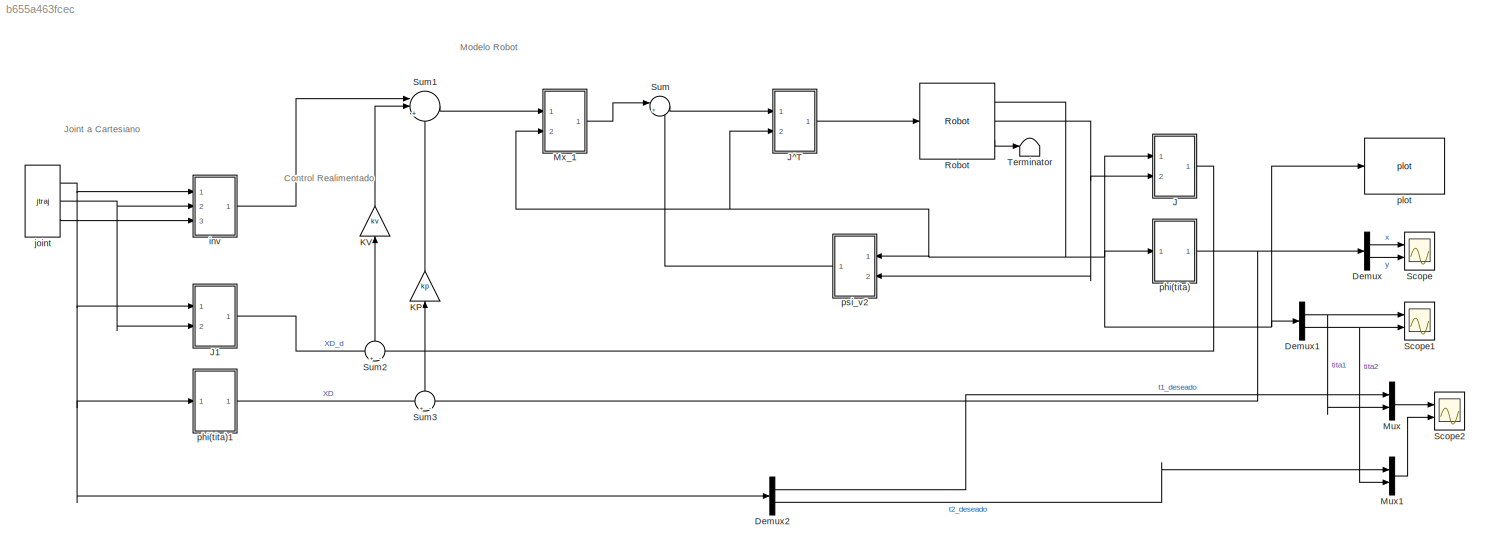
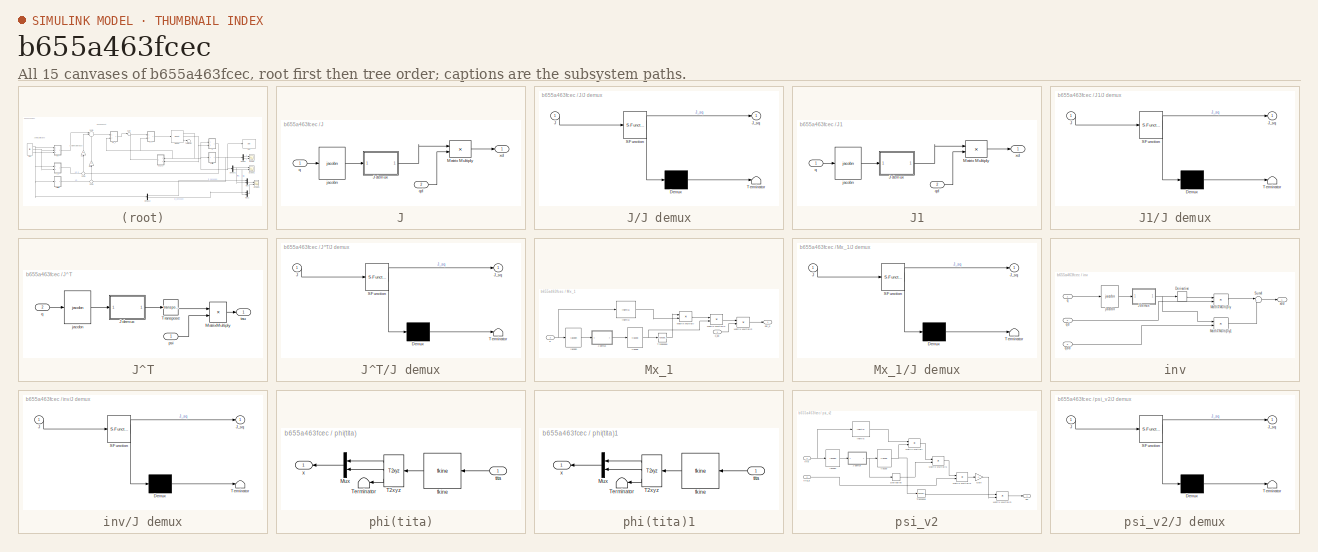
[diagram: thumbnail index - all 15 canvases of the model, root first then tree order]
MODEL slx_b655a463fcec
KIND model
CONFIG AbsTol = auto
CONFIG EnableMultiTasking = off
CONFIG FixedStep = 0.005
CONFIG MaxStep = auto
CONFIG MinStep = auto
CONFIG RelTol = 1e-3
CONFIG SampleTimeConstraint = Unconstrained
CONFIG Solver = VariableStepAuto
CONFIG SolverName = VariableStepAuto
CONFIG StartTime = 0.0
CONFIG StopTime = 10
BLOCK [Demux] Demux
  DisplayOption = bar
  Outputs = 2
  Ports = [1, 2]
BLOCK [Demux] Demux1
  DisplayOption = bar
  Outputs = 2
  Ports = [1, 2]
BLOCK [Demux] Demux2
  DisplayOption = bar
  Outputs = 2
  Ports = [1, 2]
BLOCK [SubSystem] J
  Ports = [2, 1]
  RequestExecContextInheritance = off
BLOCK [SubSystem] J/J demux
  ErrorFcn = Stateflow.Translate.translate
  PermitHierarchicalResolution = ExplicitOnly
  Ports = [1, 1]
  RequestExecContextInheritance = off
  SFBlockType = MATLAB Function
  TreatAsAtomicUnit = on
BLOCK [Demux] J/J demux/ Demux 
  Outputs = 1
  Ports = [1, 1]
BLOCK [S-Function] J/J demux/ SFunction 
  EnableBusSupport = on
  FunctionName = sf_sfun
  PortCounts = [1 2]
  Ports = [1, 2]
  SFcnIsStateOwnerBlock = off
  SFunctionDeploymentMode = off
  Tag = Stateflow S-Function 12
BLOCK [Terminator] J/J demux/ Terminator 
BLOCK [Inport] J/J demux/J
  IconDisplay = Port number
BLOCK [Outport] J/J demux/J_sq
  IconDisplay = Port number
BLOCK [Product] J/Matrix Multiply
  InputSameDT = off
  Multiplication = Matrix(*)
  OutDataTypeStr = Inherit: Inherit via internal rule
  Ports = [2, 1]
  RndMeth = Floor
  SaturateOnIntegerOverflow = off
BLOCK [Reference] J/jacobn  REF=roblocks/Arm/jacobn  (lib defined in mdl_2a292b13c81b, mdl_69400f8cfe22, +12 more)
  Ports = [1, 1]
  SourceBlock = roblocks/Arm/jacobn
BLOCK [Inport] J/q
  IconDisplay = Port number
BLOCK [Inport] J/qd
  IconDisplay = Port number
  Port = 2
BLOCK [Outport] J/xd
  IconDisplay = Port number
BLOCK [SubSystem] J1
  Ports = [2, 1]
  RequestExecContextInheritance = off
BLOCK [SubSystem] J1/J demux
  ErrorFcn = Stateflow.Translate.translate
  PermitHierarchicalResolution = ExplicitOnly
  Ports = [1, 1]
  RequestExecContextInheritance = off
  SFBlockType = MATLAB Function
  TreatAsAtomicUnit = on
BLOCK [Demux] J1/J demux/ Demux 
  Outputs = 1
  Ports = [1, 1]
BLOCK [S-Function] J1/J demux/ SFunction 
  EnableBusSupport = on
  FunctionName = sf_sfun
  PortCounts = [1 2]
  Ports = [1, 2]
  SFcnIsStateOwnerBlock = off
  SFunctionDeploymentMode = off
  Tag = Stateflow S-Function 10
BLOCK [Terminator] J1/J demux/ Terminator 
BLOCK [Inport] J1/J demux/J
  IconDisplay = Port number
BLOCK [Outport] J1/J demux/J_sq
  IconDisplay = Port number
BLOCK [Product] J1/Matrix Multiply
  InputSameDT = off
  Multiplication = Matrix(*)
  OutDataTypeStr = Inherit: Inherit via internal rule
  Ports = [2, 1]
  RndMeth = Floor
  SaturateOnIntegerOverflow = off
BLOCK [Reference] J1/jacobn  REF=roblocks/Arm/jacobn  (lib defined in mdl_2a292b13c81b, mdl_69400f8cfe22, +12 more)
  Ports = [1, 1]
  SourceBlock = roblocks/Arm/jacobn
BLOCK [Inport] J1/q
  IconDisplay = Port number
BLOCK [Inport] J1/qd
  IconDisplay = Port number
  Port = 2
BLOCK [Outport] J1/xd
  IconDisplay = Port number
BLOCK [SubSystem] J^T
  Ports = [2, 1]
  RequestExecContextInheritance = off
BLOCK [SubSystem] J^T/J demux
  ErrorFcn = Stateflow.Translate.translate
  PermitHierarchicalResolution = ExplicitOnly
  Ports = [1, 1]
  RequestExecContextInheritance = off
  SFBlockType = MATLAB Function
  TreatAsAtomicUnit = on
BLOCK [Demux] J^T/J demux/ Demux 
  Outputs = 1
  Ports = [1, 1]
BLOCK [S-Function] J^T/J demux/ SFunction 
  EnableBusSupport = on
  FunctionName = sf_sfun
  PortCounts = [1 2]
  Ports = [1, 2]
  SFcnIsStateOwnerBlock = off
  SFunctionDeploymentMode = off
  Tag = Stateflow S-Function 2
BLOCK [Terminator] J^T/J demux/ Terminator 
BLOCK [Inport] J^T/J demux/J
  IconDisplay = Port number
BLOCK [Outport] J^T/J demux/J_sq
  IconDisplay = Port number
BLOCK [Product] J^T/MatrixMultiply
  InputSameDT = off
  Multiplication = Matrix(*)
  OutDataTypeStr = Inherit: Inherit via internal rule
  Ports = [2, 1]
  RndMeth = Floor
  SaturateOnIntegerOverflow = off
BLOCK [Math] J^T/Transpose
  Operator = transpose
  Ports = [1, 1]
BLOCK [Reference] J^T/jacobn  REF=roblocks/Arm/jacobn  (lib defined in mdl_2a292b13c81b, mdl_69400f8cfe22, +12 more)
  Ports = [1, 1]
  SourceBlock = roblocks/Arm/jacobn
BLOCK [Inport] J^T/psi
  IconDisplay = Port number
BLOCK [Inport] J^T/q
  IconDisplay = Port number
  Port = 2
BLOCK [Outport] J^T/tau
  IconDisplay = Port number
BLOCK [Gain] KP
  Gain = kp
  OutDataTypeStr = Inherit: Inherit via internal rule
  ParamDataTypeStr = Inherit: Inherit via internal rule
  SaturateOnIntegerOverflow = off
BLOCK [Gain] KV
  Gain = kv
  OutDataTypeStr = Inherit: Inherit via internal rule
  ParamDataTypeStr = Inherit: Inherit via internal rule
  SaturateOnIntegerOverflow = off
BLOCK [Mux] Mux
  DisplayOption = bar
  Inputs = 2
  Ports = [2, 1]
BLOCK [Mux] Mux1
  DisplayOption = bar
  Inputs = 2
  Ports = [2, 1]
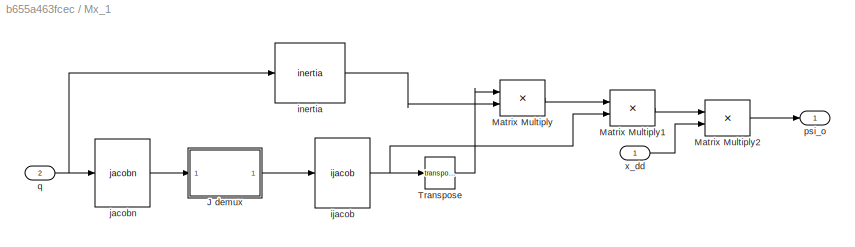
BLOCK [SubSystem] Mx_1
  Ports = [2, 1]
  RequestExecContextInheritance = off
BLOCK [SubSystem] Mx_1/J demux
  ErrorFcn = Stateflow.Translate.translate
  PermitHierarchicalResolution = ExplicitOnly
  Ports = [1, 1]
  RequestExecContextInheritance = off
  SFBlockType = MATLAB Function
  TreatAsAtomicUnit = on
BLOCK [Demux] Mx_1/J demux/ Demux 
  Outputs = 1
  Ports = [1, 1]
BLOCK [S-Function] Mx_1/J demux/ SFunction 
  EnableBusSupport = on
  FunctionName = sf_sfun
  PortCounts = [1 2]
  Ports = [1, 2]
  SFcnIsStateOwnerBlock = off
  SFunctionDeploymentMode = off
  Tag = Stateflow S-Function 11
BLOCK [Terminator] Mx_1/J demux/ Terminator 
BLOCK [Inport] Mx_1/J demux/J
  IconDisplay = Port number
BLOCK [Outport] Mx_1/J demux/J_sq
  IconDisplay = Port number
BLOCK [Product] Mx_1/Matrix Multiply
  InputSameDT = off
  Multiplication = Matrix(*)
  OutDataTypeStr = Inherit: Inherit via internal rule
  Ports = [2, 1]
  RndMeth = Floor
  SaturateOnIntegerOverflow = off
BLOCK [Product] Mx_1/Matrix Multiply1
  InputSameDT = off
  Multiplication = Matrix(*)
  OutDataTypeStr = Inherit: Inherit via internal rule
  Ports = [2, 1]
  RndMeth = Floor
  SaturateOnIntegerOverflow = off
BLOCK [Product] Mx_1/Matrix Multiply2
  InputSameDT = off
  Multiplication = Matrix(*)
  OutDataTypeStr = Inherit: Inherit via internal rule
  Ports = [2, 1]
  RndMeth = Floor
  SaturateOnIntegerOverflow = off
BLOCK [Math] Mx_1/Transpose
  Operator = transpose
  Ports = [1, 1]
BLOCK [Reference] Mx_1/ijacob  REF=roblocks/Arm/ijacob  (lib defined in mdl_2a292b13c81b, mdl_69400f8cfe22, +12 more)
  Ports = [1, 1]
  SourceBlock = roblocks/Arm/ijacob
BLOCK [Reference] Mx_1/inertia  REF=roblocks/Arm/inertia  (lib defined in mdl_2a292b13c81b, mdl_69400f8cfe22, +12 more)
  Ports = [1, 1]
  SourceBlock = roblocks/Arm/inertia
BLOCK [Reference] Mx_1/jacobn  REF=roblocks/Arm/jacobn  (lib defined in mdl_2a292b13c81b, mdl_69400f8cfe22, +12 more)
  Ports = [1, 1]
  SourceBlock = roblocks/Arm/jacobn
BLOCK [Outport] Mx_1/psi_o
  IconDisplay = Port number
BLOCK [Inport] Mx_1/q
  IconDisplay = Port number
  Port = 2
BLOCK [Inport] Mx_1/x_dd
  IconDisplay = Port number
BLOCK [Reference] Robot  REF=roblocks/Arm/Robot  (lib defined in mdl_2a292b13c81b, mdl_69400f8cfe22, +12 more)
  Ports = [1, 3]
  SourceBlock = roblocks/Arm/Robot
BLOCK [Scope] Scope
  Floating = off
  NumInputPorts = 2
  Ports = [2]
  ScopeSpecificationString = Simulink.scopes.TimeScopeBlockCfg('CurrentConfiguration', extmgr.ConfigurationSet(extmgr.Configuration('Core','General UI',true,'FigureColor',[1 1 1]),extmgr.Configuration('Core','Source UI',true),extmgr.Configuration('Sources','WiredSimulink',true),extmgr.Configuration('Visuals','Time Domain',true,'SerializedDisplays',{struct('MinYLimReal','0.96842','MaxYLimReal','1.28422','YLabelReal','','MinYLi...<+2986ch>
BLOCK [Scope] Scope1
  Floating = off
  NumInputPorts = 2
  Ports = [2]
  ScopeSpecificationString = Simulink.scopes.TimeScopeBlockCfg('CurrentConfiguration', extmgr.ConfigurationSet(extmgr.Configuration('Core','General UI',true,'FigureColor',[1 1 1]),extmgr.Configuration('Core','Source UI',true),extmgr.Configuration('Sources','WiredSimulink',true,'DataLoggingVariableName','ScopeData1'),extmgr.Configuration('Visuals','Time Domain',true,'SerializedDisplays',{struct('MinYLimReal','-0.20513','MaxYLi...<+2917ch>
BLOCK [Scope] Scope2
  Floating = off
  NumInputPorts = 2
  Ports = [2]
  ScopeSpecificationString = Simulink.scopes.TimeScopeBlockCfg('CurrentConfiguration', extmgr.ConfigurationSet(extmgr.Configuration('Core','General UI',true,'FigureColor',[1 1 1]),extmgr.Configuration('Core','Source UI',true),extmgr.Configuration('Sources','WiredSimulink',true,'DataLoggingVariableName','ScopeData1'),extmgr.Configuration('Visuals','Time Domain',true,'SerializedDisplays',{struct('MinYLimReal','-2','MaxYLimReal'...<+2918ch>
BLOCK [Sum] Sum
  IconShape = round
  InputSameDT = off
  Inputs = |++
  OutDataTypeStr = Inherit: Inherit via internal rule
  Ports = [2, 1]
  SaturateOnIntegerOverflow = off
BLOCK [Sum] Sum1
  IconShape = round
  InputSameDT = off
  Inputs = ||+++
  OutDataTypeStr = Inherit: Inherit via internal rule
  Ports = [3, 1]
  SaturateOnIntegerOverflow = off
BLOCK [Sum] Sum2
  IconShape = round
  InputSameDT = off
  Inputs = +|-
  OutDataTypeStr = Inherit: Inherit via internal rule
  Ports = [2, 1]
  SaturateOnIntegerOverflow = off
BLOCK [Sum] Sum3
  IconShape = round
  InputSameDT = off
  Inputs = +|-
  OutDataTypeStr = Inherit: Inherit via internal rule
  Ports = [2, 1]
  SaturateOnIntegerOverflow = off
BLOCK [Terminator] Terminator
BLOCK [SubSystem] inv
  Ports = [3, 1]
  RequestExecContextInheritance = off
BLOCK [Derivative] inv/Derivative
BLOCK [SubSystem] inv/J demux
  ErrorFcn = Stateflow.Translate.translate
  PermitHierarchicalResolution = ExplicitOnly
  Ports = [1, 1]
  RequestExecContextInheritance = off
  SFBlockType = MATLAB Function
  TreatAsAtomicUnit = on
BLOCK [Demux] inv/J demux/ Demux 
  Outputs = 1
  Ports = [1, 1]
BLOCK [S-Function] inv/J demux/ SFunction 
  EnableBusSupport = on
  FunctionName = sf_sfun
  PortCounts = [1 2]
  Ports = [1, 2]
  SFcnIsStateOwnerBlock = off
  SFunctionDeploymentMode = off
  Tag = Stateflow S-Function 14
BLOCK [Terminator] inv/J demux/ Terminator 
BLOCK [Inport] inv/J demux/J
  IconDisplay = Port number
BLOCK [Outport] inv/J demux/J_sq
  IconDisplay = Port number
BLOCK [Product] inv/Matrix Multiply
  InputSameDT = off
  Multiplication = Matrix(*)
  OutDataTypeStr = Inherit: Inherit via internal rule
  Ports = [2, 1]
  RndMeth = Floor
  SaturateOnIntegerOverflow = off
BLOCK [Product] inv/Matrix Multiply1
  InputSameDT = off
  Multiplication = Matrix(*)
  OutDataTypeStr = Inherit: Inherit via internal rule
  Ports = [2, 1]
  RndMeth = Floor
  SaturateOnIntegerOverflow = off
BLOCK [Sum] inv/Sum4
  IconShape = round
  InputSameDT = off
  Inputs = |++
  OutDataTypeStr = Inherit: Inherit via internal rule
  Ports = [2, 1]
  SaturateOnIntegerOverflow = off
BLOCK [Reference] inv/jacobn  REF=roblocks/Arm/jacobn  (lib defined in mdl_2a292b13c81b, mdl_69400f8cfe22, +12 more)
  Ports = [1, 1]
  SourceBlock = roblocks/Arm/jacobn
BLOCK [Inport] inv/q
  IconDisplay = Port number
BLOCK [Inport] inv/qd
  IconDisplay = Port number
  Port = 2
BLOCK [Inport] inv/qdd
  IconDisplay = Port number
  Port = 3
BLOCK [Outport] inv/xdd
  IconDisplay = Port number
BLOCK [Reference] joint  REF=roblocks/Toolbox/jtraj  (lib defined in mdl_2a292b13c81b, mdl_69400f8cfe22, +12 more)
  Ports = [0, 3]
  SourceBlock = roblocks/Toolbox/jtraj
BLOCK [SubSystem] phi(tita)
  Ports = [1, 1]
  RequestExecContextInheritance = off
BLOCK [Mux] phi(tita)/Mux
  DisplayOption = bar
  Inputs = 2
  Ports = [2, 1]
BLOCK [Reference] phi(tita)/T2xyz  REF=roblocks/Toolbox/T2xyz  (lib defined in mdl_2a292b13c81b, mdl_69400f8cfe22, +12 more)
  Ports = [1, 3]
  SourceBlock = roblocks/Toolbox/T2xyz
BLOCK [Terminator] phi(tita)/Terminator
BLOCK [Reference] phi(tita)/fkine  REF=roblocks/Arm/fkine  (lib defined in mdl_2a292b13c81b, mdl_69400f8cfe22, +12 more)
  Ports = [1, 1]
  SourceBlock = roblocks/Arm/fkine
BLOCK [Inport] phi(tita)/tita
  IconDisplay = Port number
BLOCK [Outport] phi(tita)/x
  IconDisplay = Port number
BLOCK [SubSystem] phi(tita)1
  Ports = [1, 1]
  RequestExecContextInheritance = off
BLOCK [Mux] phi(tita)1/Mux
  DisplayOption = bar
  Inputs = 2
  Ports = [2, 1]
BLOCK [Reference] phi(tita)1/T2xyz  REF=roblocks/Toolbox/T2xyz  (lib defined in mdl_2a292b13c81b, mdl_69400f8cfe22, +12 more)
  Ports = [1, 3]
  SourceBlock = roblocks/Toolbox/T2xyz
BLOCK [Terminator] phi(tita)1/Terminator
BLOCK [Reference] phi(tita)1/fkine  REF=roblocks/Arm/fkine  (lib defined in mdl_2a292b13c81b, mdl_69400f8cfe22, +12 more)
  Ports = [1, 1]
  SourceBlock = roblocks/Arm/fkine
BLOCK [Inport] phi(tita)1/tita
  IconDisplay = Port number
BLOCK [Outport] phi(tita)1/x
  IconDisplay = Port number
BLOCK [Reference] plot  REF=roblocks/Arm/plot  (lib defined in mdl_2a292b13c81b, mdl_69400f8cfe22, +12 more)
  Ports = [1]
  SourceBlock = roblocks/Arm/plot
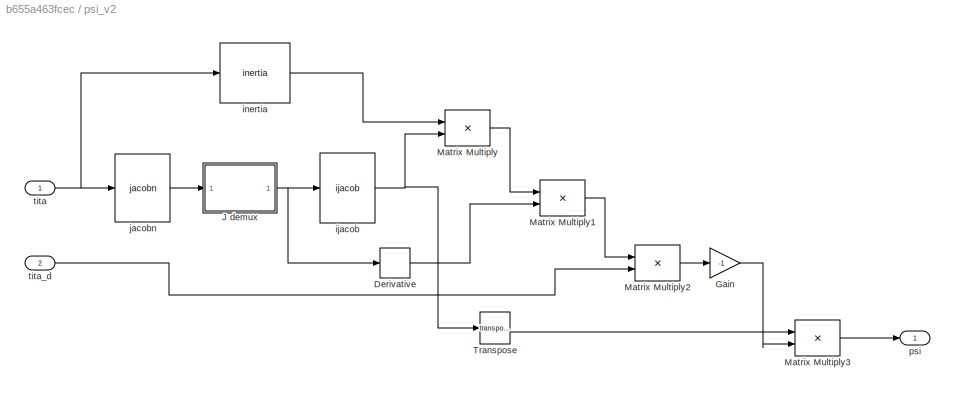
BLOCK [SubSystem] psi_v2
  Ports = [2, 1]
  RequestExecContextInheritance = off
BLOCK [Derivative] psi_v2/Derivative
BLOCK [Gain] psi_v2/Gain
  Gain = -1
  OutDataTypeStr = Inherit: Inherit via internal rule
  ParamDataTypeStr = Inherit: Inherit via internal rule
  SaturateOnIntegerOverflow = off
BLOCK [SubSystem] psi_v2/J demux
  ErrorFcn = Stateflow.Translate.translate
  PermitHierarchicalResolution = ExplicitOnly
  Ports = [1, 1]
  RequestExecContextInheritance = off
  SFBlockType = MATLAB Function
  TreatAsAtomicUnit = on
BLOCK [Demux] psi_v2/J demux/ Demux 
  Outputs = 1
  Ports = [1, 1]
BLOCK [S-Function] psi_v2/J demux/ SFunction 
  EnableBusSupport = on
  FunctionName = sf_sfun
  PortCounts = [1 2]
  Ports = [1, 2]
  SFcnIsStateOwnerBlock = off
  SFunctionDeploymentMode = off
  Tag = Stateflow S-Function 13
BLOCK [Terminator] psi_v2/J demux/ Terminator 
BLOCK [Inport] psi_v2/J demux/J
  IconDisplay = Port number
BLOCK [Outport] psi_v2/J demux/J_sq
  IconDisplay = Port number
BLOCK [Product] psi_v2/Matrix Multiply
  InputSameDT = off
  Multiplication = Matrix(*)
  OutDataTypeStr = Inherit: Inherit via internal rule
  Ports = [2, 1]
  RndMeth = Floor
  SaturateOnIntegerOverflow = off
BLOCK [Product] psi_v2/Matrix Multiply1
  InputSameDT = off
  Multiplication = Matrix(*)
  OutDataTypeStr = Inherit: Inherit via internal rule
  Ports = [2, 1]
  RndMeth = Floor
  SaturateOnIntegerOverflow = off
BLOCK [Product] psi_v2/Matrix Multiply2
  InputSameDT = off
  Multiplication = Matrix(*)
  OutDataTypeStr = Inherit: Inherit via internal rule
  Ports = [2, 1]
  RndMeth = Floor
  SaturateOnIntegerOverflow = off
BLOCK [Product] psi_v2/Matrix Multiply3
  InputSameDT = off
  Multiplication = Matrix(*)
  OutDataTypeStr = Inherit: Inherit via internal rule
  Ports = [2, 1]
  RndMeth = Floor
  SaturateOnIntegerOverflow = off
BLOCK [Math] psi_v2/Transpose
  Operator = transpose
  Ports = [1, 1]
BLOCK [Reference] psi_v2/ijacob  REF=roblocks/Arm/ijacob  (lib defined in mdl_2a292b13c81b, mdl_69400f8cfe22, +12 more)
  Ports = [1, 1]
  SourceBlock = roblocks/Arm/ijacob
BLOCK [Reference] psi_v2/inertia  REF=roblocks/Arm/inertia  (lib defined in mdl_2a292b13c81b, mdl_69400f8cfe22, +12 more)
  Ports = [1, 1]
  SourceBlock = roblocks/Arm/inertia
BLOCK [Reference] psi_v2/jacobn  REF=roblocks/Arm/jacobn  (lib defined in mdl_2a292b13c81b, mdl_69400f8cfe22, +12 more)
  Ports = [1, 1]
  SourceBlock = roblocks/Arm/jacobn
BLOCK [Outport] psi_v2/psi
  IconDisplay = Port number
BLOCK [Inport] psi_v2/tita
  IconDisplay = Port number
BLOCK [Inport] psi_v2/tita_d
  IconDisplay = Port number
  Port = 2
ANNOTATION (root): Control Realimentado
ANNOTATION (root): Joint a Cartesiano
ANNOTATION (root): Modelo Robot
NET Demux1:1 -> Mux:2, Scope1:1
NET Demux1:2 -> Mux1:2, Scope1:2
LINE Demux2:1 -> Mux:1
LINE Demux2:2 -> Mux1:1
LINE Demux:1 -> Scope:1
LINE Demux:2 -> Scope:2
LINE J/J demux:1 -> J/Matrix Multiply:1
LINE J/Matrix Multiply:1 -> J/xd:1
LINE J/jacobn:1 -> J/J demux:1
LINE J/q:1 -> J/jacobn:1
LINE J/qd:1 -> J/Matrix Multiply:2
LINE J1/J demux:1 -> J1/Matrix Multiply:1
LINE J1/Matrix Multiply:1 -> J1/xd:1
LINE J1/jacobn:1 -> J1/J demux:1
LINE J1/q:1 -> J1/jacobn:1
LINE J1/qd:1 -> J1/Matrix Multiply:2
LINE J1:1 -> Sum2:1
LINE J:1 -> Sum2:2
LINE J^T/J demux:1 -> J^T/Transpose:1
LINE J^T/MatrixMultiply:1 -> J^T/tau:1
LINE J^T/Transpose:1 -> J^T/MatrixMultiply:1
LINE J^T/jacobn:1 -> J^T/J demux:1
LINE J^T/psi:1 -> J^T/MatrixMultiply:2
LINE J^T/q:1 -> J^T/jacobn:1
LINE J^T:1 -> Robot:1
LINE KP:1 -> Sum1:3
LINE KV:1 -> Sum1:2
LINE Mux1:1 -> Scope2:2
LINE Mux:1 -> Scope2:1
LINE Mx_1/J demux:1 -> Mx_1/ijacob:1
LINE Mx_1/Matrix Multiply1:1 -> Mx_1/Matrix Multiply2:1
LINE Mx_1/Matrix Multiply2:1 -> Mx_1/psi_o:1
LINE Mx_1/Matrix Multiply:1 -> Mx_1/Matrix Multiply1:1
LINE Mx_1/Transpose:1 -> Mx_1/Matrix Multiply:1
NET Mx_1/ijacob:1 -> Mx_1/Matrix Multiply1:2, Mx_1/Transpose:1
LINE Mx_1/inertia:1 -> Mx_1/Matrix Multiply:2
LINE Mx_1/jacobn:1 -> Mx_1/J demux:1
NET Mx_1/q:1 -> Mx_1/inertia:1, Mx_1/jacobn:1
LINE Mx_1/x_dd:1 -> Mx_1/Matrix Multiply2:2
LINE Mx_1:1 -> Sum:1
NET Robot:1 -> Demux1:1, J:1, J^T:2, Mx_1:2, phi(tita):1, plot:1, psi_v2:1
NET Robot:2 -> J:2, psi_v2:2
LINE Robot:3 -> Terminator:1
LINE Sum1:1 -> Mx_1:1
LINE Sum2:1 -> KV:1
LINE Sum3:1 -> KP:1
LINE Sum:1 -> J^T:1
LINE inv/Derivative:1 -> inv/Matrix Multiply:1
NET inv/J demux:1 -> inv/Derivative:1, inv/Matrix Multiply1:1
LINE inv/Matrix Multiply1:1 -> inv/Sum4:2
LINE inv/Matrix Multiply:1 -> inv/Sum4:1
LINE inv/Sum4:1 -> inv/xdd:1
LINE inv/jacobn:1 -> inv/J demux:1
LINE inv/q:1 -> inv/jacobn:1
LINE inv/qd:1 -> inv/Matrix Multiply:2
LINE inv/qdd:1 -> inv/Matrix Multiply1:2
LINE inv:1 -> Sum1:1
NET joint:1 -> Demux2:1, J1:1, inv:1, phi(tita)1:1
NET joint:2 -> J1:2, inv:2
LINE joint:3 -> inv:3
LINE phi(tita)/Mux:1 -> phi(tita)/x:1
LINE phi(tita)/T2xyz:1 -> phi(tita)/Mux:1
LINE phi(tita)/T2xyz:2 -> phi(tita)/Mux:2
LINE phi(tita)/T2xyz:3 -> phi(tita)/Terminator:1
LINE phi(tita)/fkine:1 -> phi(tita)/T2xyz:1
LINE phi(tita)/tita:1 -> phi(tita)/fkine:1
LINE phi(tita)1/Mux:1 -> phi(tita)1/x:1
LINE phi(tita)1/T2xyz:1 -> phi(tita)1/Mux:1
LINE phi(tita)1/T2xyz:2 -> phi(tita)1/Mux:2
LINE phi(tita)1/T2xyz:3 -> phi(tita)1/Terminator:1
LINE phi(tita)1/fkine:1 -> phi(tita)1/T2xyz:1
LINE phi(tita)1/tita:1 -> phi(tita)1/fkine:1
LINE phi(tita)1:1 -> Sum3:1
NET phi(tita):1 -> Demux:1, Sum3:2
LINE psi_v2/Derivative:1 -> psi_v2/Matrix Multiply1:2
LINE psi_v2/Gain:1 -> psi_v2/Matrix Multiply3:2
NET psi_v2/J demux:1 -> psi_v2/Derivative:1, psi_v2/ijacob:1
LINE psi_v2/Matrix Multiply1:1 -> psi_v2/Matrix Multiply2:1
LINE psi_v2/Matrix Multiply2:1 -> psi_v2/Gain:1
LINE psi_v2/Matrix Multiply3:1 -> psi_v2/psi:1
LINE psi_v2/Matrix Multiply:1 -> psi_v2/Matrix Multiply1:1
LINE psi_v2/Transpose:1 -> psi_v2/Matrix Multiply3:1
NET psi_v2/ijacob:1 -> psi_v2/Matrix Multiply:2, psi_v2/Transpose:1
LINE psi_v2/inertia:1 -> psi_v2/Matrix Multiply:1
LINE psi_v2/jacobn:1 -> psi_v2/J demux:1
NET psi_v2/tita:1 -> psi_v2/inertia:1, psi_v2/jacobn:1
LINE psi_v2/tita_d:1 -> psi_v2/Matrix Multiply2:2
LINE psi_v2:1 -> Sum:2
note: NET lines group one-source signal fan-out (src -> all destinations, sorted); 1:1 wires keep LINE
CHART J^T/J demux states=1 transitions=1
  STATE_LABEL 'eML_blk_kernel()'
  STATE_LABEL 'SCRIPT:\nfunction J_sq = fcn(J)\n\nJ_sq = [J(1,1) J(1,2);J(2,1) J(2,2)];\n'
CHART J1/J demux states=1 transitions=1
  STATE_LABEL 'eML_blk_kernel()'
  STATE_LABEL 'SCRIPT:\nfunction J_sq = fcn(J)\n\nJ_sq = [J(1,1) J(1,2);J(2,1) J(2,2)];\n'
CHART Mx_1/J demux states=1 transitions=1
  STATE_LABEL 'eML_blk_kernel()'
  STATE_LABEL 'SCRIPT:\nfunction J_sq = fcn(J)\n\nJ_sq = [J(1,1) J(1,2);J(2,1) J(2,2)];\n'
CHART J/J demux states=1 transitions=1
  STATE_LABEL 'eML_blk_kernel()'
  STATE_LABEL 'SCRIPT:\nfunction J_sq = fcn(J)\n\nJ_sq = [J(1,1) J(1,2);J(2,1) J(2,2)];\n'
CHART psi_v2/J demux states=1 transitions=1
  STATE_LABEL 'eML_blk_kernel()'
  STATE_LABEL 'SCRIPT:\nfunction J_sq = fcn(J)\n\nJ_sq = [J(1,1) J(1,2);J(2,1) J(2,2)];\n'
CHART inv/J demux states=1 transitions=1
  STATE_LABEL 'eML_blk_kernel()'
  STATE_LABEL 'SCRIPT:\nfunction J_sq = fcn(J)\n\nJ_sq = [J(1,1) J(1,2);J(2,1) J(2,2)];\n'
